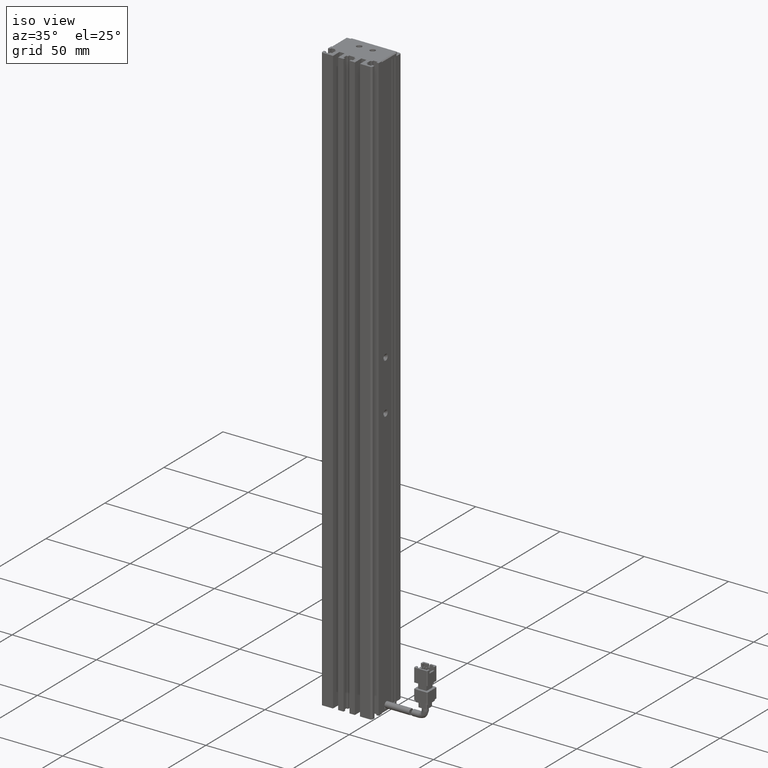
[diagram: clean part render]
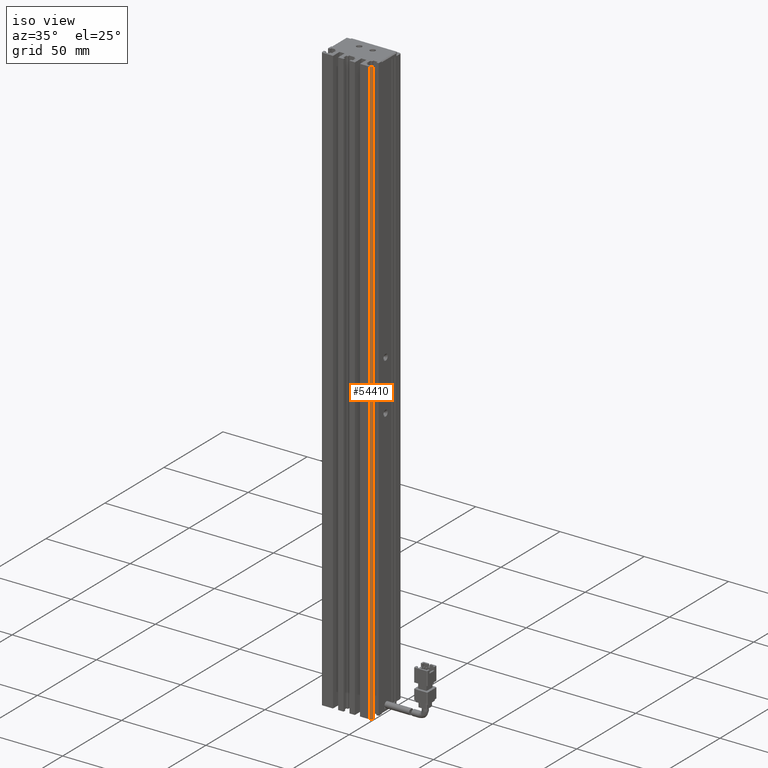
[diagram: same view with one face highlighted and labeled with its STEP entity id]
A machine part, iso view. The second image highlights one B-rep face of the part: STEP entity #54410.
In plain terms, the highlighted cylindrical surface (edge-blend (fillet) strip) has radius 1 mm, axis along (-0, -0, -1).
Its self-contained STEP definition (entity closure, byte-faithful):
#50 = CIRCLE ( 'NONE', #8464, 1.000000000000000900 ) ;
#6787 = ORIENTED_EDGE ( 'NONE', *, *, #22321, .T. ) ;
#8464 = AXIS2_PLACEMENT_3D ( 'NONE', #57821, #26659, #63103 ) ;
#8587 = EDGE_CURVE ( 'NONE', #16728, #28244, #44890, .T. ) ;
#10984 = DIRECTION ( 'NONE',  ( -0.0000000000000000000, -0.0000000000000000000, -1.000000000000000000 ) ) ;
#12871 = CARTESIAN_POINT ( 'NONE',  ( 54.92537974683542500, 10.69594479660386800, 60.00000000000001400 ) ) ;
#16728 = VERTEX_POINT ( 'NONE', #22406 ) ;
#20794 = DIRECTION ( 'NONE',  ( -0.0000000000000000000, -0.0000000000000000000, -1.000000000000000000 ) ) ;
#20901 = VERTEX_POINT ( 'NONE', #37484 ) ;
#22321 = EDGE_CURVE ( 'NONE', #28244, #20901, #55431, .T. ) ;
#22406 = CARTESIAN_POINT ( 'NONE',  ( 55.92537974683542500, 11.69594479660387000, 60.00000000000001400 ) ) ;
#25030 = VERTEX_POINT ( 'NONE', #45784 ) ;
#25153 = CARTESIAN_POINT ( 'NONE',  ( 54.92537974683542500, 11.69594479660387000, 60.00000000000001400 ) ) ;
#26659 = DIRECTION ( 'NONE',  ( 0.0000000000000000000, 0.0000000000000000000, 1.000000000000000000 ) ) ;
#26798 = EDGE_CURVE ( 'NONE', #20901, #25030, #50, .T. ) ;
#28244 = VERTEX_POINT ( 'NONE', #12871 ) ;
#34573 = CARTESIAN_POINT ( 'NONE',  ( 55.92537974683542500, 11.69594479660387000, 60.00000000000001400 ) ) ;
#35721 = LINE ( 'NONE', #34573, #63453 ) ;
#36652 = ORIENTED_EDGE ( 'NONE', *, *, #26798, .T. ) ;
#37484 = CARTESIAN_POINT ( 'NONE',  ( 54.92537974683542500, 10.69594479660386800, -290.0000000000000600 ) ) ;
#38712 = EDGE_CURVE ( 'NONE', #25030, #16728, #35721, .T. ) ;
#40407 = ORIENTED_EDGE ( 'NONE', *, *, #38712, .T. ) ;
#42173 = CARTESIAN_POINT ( 'NONE',  ( 54.92537974683542500, 10.69594479660386800, 60.00000000000001400 ) ) ;
#42627 = FACE_OUTER_BOUND ( 'NONE', #62963, .T. ) ;
#44890 = CIRCLE ( 'NONE', #67198, 1.000000000000000900 ) ;
#45784 = CARTESIAN_POINT ( 'NONE',  ( 55.92537974683542500, 11.69594479660387000, -290.0000000000000600 ) ) ;
#49999 = CYLINDRICAL_SURFACE ( 'NONE', #63271, 1.000000000000000900 ) ;
#52002 = CARTESIAN_POINT ( 'NONE',  ( 54.92537974683542500, 11.69594479660387000, 60.00000000000001400 ) ) ;
#54410 = ADVANCED_FACE ( 'NONE', ( #42627 ), #49999, .T. ) ;
#55431 = LINE ( 'NONE', #42173, #61979 ) ;
#57211 = DIRECTION ( 'NONE',  ( -1.000000000000000000, 0.0000000000000000000, 0.0000000000000000000 ) ) ;
#57821 = CARTESIAN_POINT ( 'NONE',  ( 54.92537974683542500, 11.69594479660387000, -290.0000000000000600 ) ) ;
#60320 = DIRECTION ( 'NONE',  ( 0.0000000000000000000, 0.0000000000000000000, 1.000000000000000000 ) ) ;
#61554 = DIRECTION ( 'NONE',  ( -1.000000000000000000, 0.0000000000000000000, 0.0000000000000000000 ) ) ;
#61979 = VECTOR ( 'NONE', #10984, 1000.000000000000000 ) ;
#62411 = ORIENTED_EDGE ( 'NONE', *, *, #8587, .T. ) ;
#62963 = EDGE_LOOP ( 'NONE', ( #62411, #6787, #36652, #40407 ) ) ;
#63103 = DIRECTION ( 'NONE',  ( -1.000000000000000000, 0.0000000000000000000, 0.0000000000000000000 ) ) ;
#63271 = AXIS2_PLACEMENT_3D ( 'NONE', #25153, #66587, #61554 ) ;
#63453 = VECTOR ( 'NONE', #60320, 1000.000000000000000 ) ;
#66587 = DIRECTION ( 'NONE',  ( -0.0000000000000000000, -0.0000000000000000000, -1.000000000000000000 ) ) ;
#67198 = AXIS2_PLACEMENT_3D ( 'NONE', #52002, #20794, #57211 ) ;